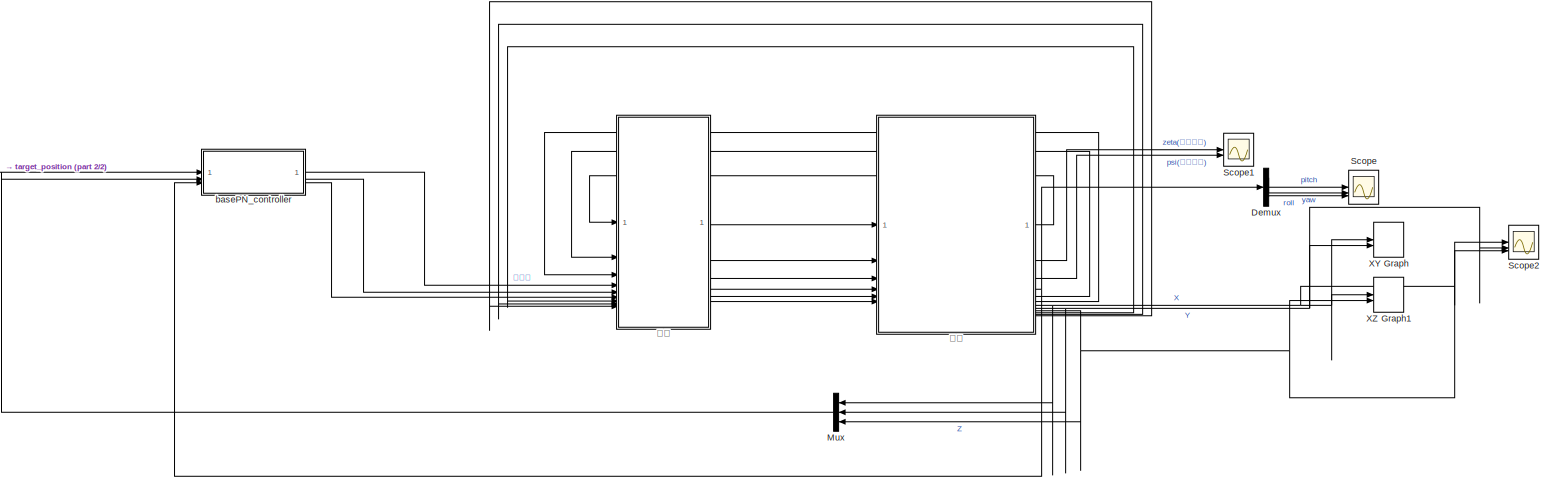
[diagram: root canvas - part 1/2, most of the canvas]
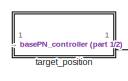
[diagram: root canvas - part 2/2, middle left region]
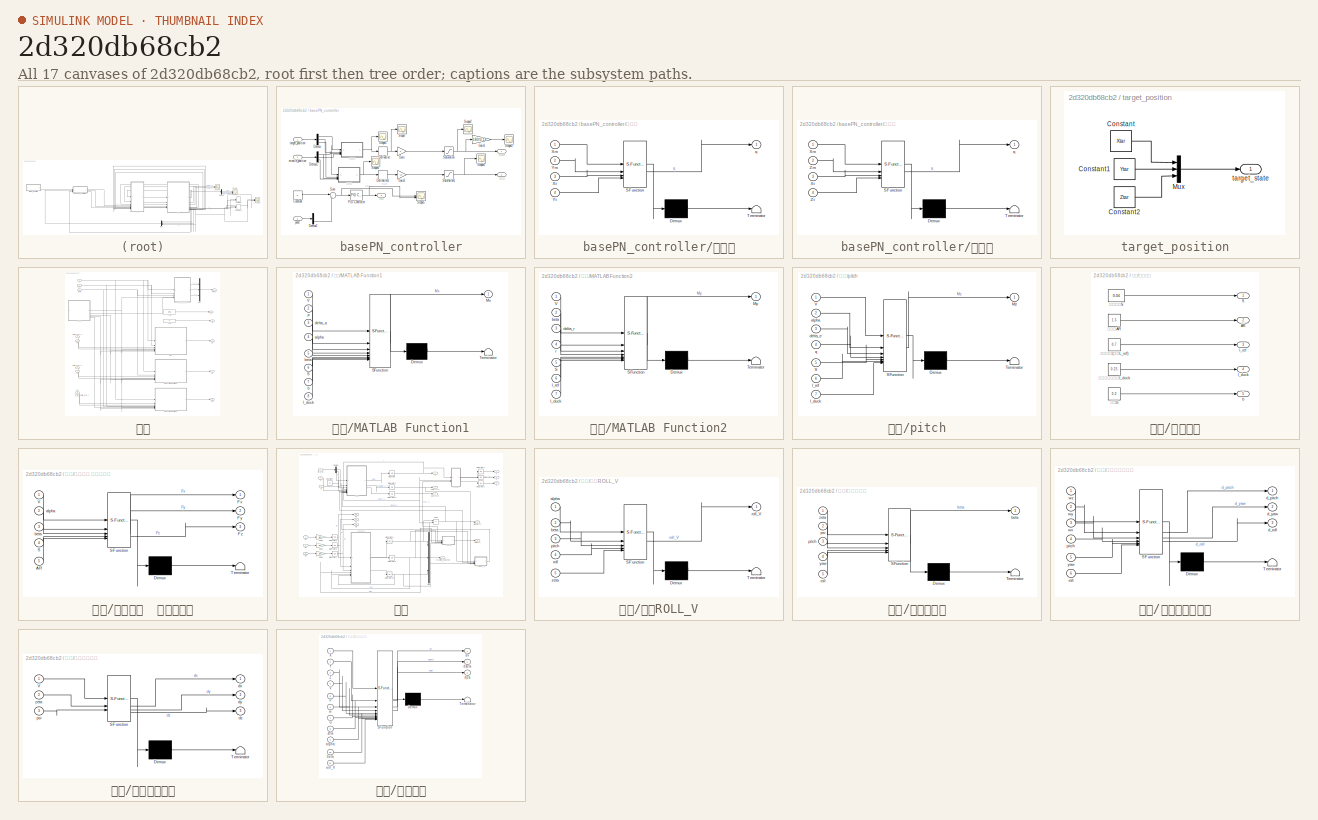
[diagram: thumbnail index - all 17 canvases of the model, root first then tree order]
MODEL slx_2d320db68cb2
KIND model
CONFIG AbsTol = auto
CONFIG EnableMultiTasking = off
CONFIG FixedStep = auto
CONFIG MaxStep = auto
CONFIG MinStep = auto
CONFIG RelTol = 1e-3
CONFIG SampleTimeConstraint = Unconstrained
CONFIG SolverName = VariableStepAuto
CONFIG StartTime = 0.0
CONFIG StopTime = 2.25
BLOCK [Demux] Demux
  Outputs = 3
BLOCK [Mux] Mux
  DisplayOption = bar
  Inputs = 3
  NameLocation = top
BLOCK [Scope] Scope
  Floating = off
  NumInputPorts = 3
  ScopeSpecificationString = Simulink.scopes.TimeScopeBlockCfg('CurrentConfiguration', extmgr.ConfigurationSet(extmgr.Configuration('Core','General UI',true),extmgr.Configuration('Core','Source UI',true),extmgr.Configuration('Sources','WiredSimulink',true,'DataLoggingVariableName','ScopeData4'),extmgr.Configuration('Visuals','Time Domain',true,'SerializedDisplays',{struct('MinYLimReal','-1.72397','MaxYLimReal','0.56017','YLab...<+2826ch>
BLOCK [Scope] Scope1
  Floating = off
  NumInputPorts = 2
  ScopeSpecificationString = Simulink.scopes.TimeScopeBlockCfg('CurrentConfiguration', extmgr.ConfigurationSet(extmgr.Configuration('Core','General UI',true),extmgr.Configuration('Core','Source UI',true),extmgr.Configuration('Sources','WiredSimulink',true,'DataLoggingVariableName','ScopeData2'),extmgr.Configuration('Visuals','Time Domain',true,'SerializedDisplays',{struct('MinYLimReal','-0.66614','MaxYLimReal','0.07402','YLab...<+2082ch>
BLOCK [Scope] Scope2
  Floating = off
  NumInputPorts = 3
  ScopeSpecificationString = Simulink.scopes.TimeScopeBlockCfg('CurrentConfiguration', extmgr.ConfigurationSet(extmgr.Configuration('Core','General UI',true),extmgr.Configuration('Core','Source UI',true),extmgr.Configuration('Sources','WiredSimulink',true,'DataLoggingVariableName','ScopeData3'),extmgr.Configuration('Visuals','Time Domain',true,'SerializedDisplays',{struct('MinYLimReal','-12.56212','MaxYLimReal','113.05906','Y...<+2692ch>
BLOCK [Record] XY Graph
  CompatibilityTag = XY
  FileSettingsInternal = {"entries":[{"content":{"excelSettings":{"content":{},"type":"Streamout.ExcelSettings"}},"type":"Streamout.FileSettingStorage","uuid":"50788435-4e7f-4ae6-926e-53e50006c5cf"}],"packageUris":["http://schema.mathworks.com/mf0/streamout_blocks/R2020a"],"version":"1.0"}
  Layout = [1 1]
  SignalsInternal = {"entries":[{"content":{"signals":[{"content":{"blockPath":["xyz_missile_model/XY Graph"],"dimensions":[1],"domain":"xyz_missile_model/XY Graph","lineColor":"#a2142f","plots":[1],"port":1,"signalID":345,"signalName":"X"},"type":"RecordBlkView.Signal","uuid":"dcb0110f-8eb4-40a9-b5a5-296dc31861ea"},{"content":{"blockPath":["xyz_missile_model/XY Graph"],"dimensions":[1],"domain":"xyz_missile_model/XY...<+337ch>
  VisualizationBindings = {"xyplotplugin":{"info":[{"series":[{"bindingParametersList":[{"parameter":"X-Axis","signalID":345,"signalName":"X"},{"parameter":"Y-Axis","signalID":348,"signalName":"Y"}],"seriesID":40790}],"subplotID":1}]}}
  st = -1
BLOCK [Record] XZ Graph1
  CompatibilityTag = XY
  FileSettingsInternal = {"entries":[{"content":{"excelSettings":{"content":{},"type":"Streamout.ExcelSettings"}},"type":"Streamout.FileSettingStorage","uuid":"9845f7a1-d993-447e-b346-9c4ab6f3d264"}],"packageUris":["http://schema.mathworks.com/mf0/streamout_blocks/R2020a"],"version":"1.0"}
  Layout = [1 1]
  SignalsInternal = {"entries":[{"content":{"signals":[{"content":{"blockPath":["xyz_missile_model/XZ Graph1"],"dimensions":[1],"domain":"xyz_missile_model/XZ Graph1","lineColor":"#a2142f","plots":[1],"port":1,"signalID":337,"signalName":"X"},"type":"RecordBlkView.Signal","uuid":"be30e74f-d4c8-4c61-9f2d-d22df2742b39"},{"content":{"blockPath":["xyz_missile_model/XZ Graph1"],"dimensions":[1],"domain":"xyz_missile_model...<+341ch>
  VisualizationBindings = {"xyplotplugin":{"info":[{"series":[{"bindingParametersList":[{"parameter":"X-Axis","signalID":337,"signalName":"X"},{"parameter":"Y-Axis","signalID":340,"signalName":"Z"}],"seriesID":33451}],"subplotID":1}]}}
  st = -1
BLOCK [SubSystem] basePN_controller
BLOCK [Constant] basePN_controller/Constant
  Value = 0
BLOCK [Demux] basePN_controller/Demux
  Outputs = 3
BLOCK [Demux] basePN_controller/Demux1
  Outputs = 3
BLOCK [Demux] basePN_controller/Demux2
  Outputs = 3
BLOCK [Derivative] basePN_controller/Derivative
BLOCK [Derivative] basePN_controller/Derivative1
BLOCK [Gain] basePN_controller/Gain
  Gain = 5
BLOCK [Gain] basePN_controller/Gain1
  Gain = 180/3.14
BLOCK [Gain] basePN_controller/Gain2
  Gain = -10
BLOCK [Reference] basePN_controller/PID Controller  REF=slpidlib/PID Controller
  LibrarySourceBlock = simulink/Continuous/PID Controller
  SourceBlock = slpidlib/PID Controller
  SourceType = PID 1dof
BLOCK [Saturate] basePN_controller/Saturation
  LowerLimit = -3.14/3
  UpperLimit = 3.14/3
BLOCK [Saturate] basePN_controller/Saturation1
  LowerLimit = -3.14/4
  UpperLimit = 3.14/4
BLOCK [Scope] basePN_controller/Scope
  Floating = off
  NumInputPorts = 1
  ScopeSpecificationString = Simulink.scopes.TimeScopeBlockCfg('CurrentConfiguration', extmgr.ConfigurationSet(extmgr.Configuration('Core','General UI',true),extmgr.Configuration('Core','Source UI',true),extmgr.Configuration('Sources','WiredSimulink',true,'DataLoggingVariableName','ScopeData1'),extmgr.Configuration('Visuals','Time Domain',true,'SerializedDisplays',{struct('MinYLimReal','-24367739610888.00781','MaxYLimReal','1...<+1513ch>
BLOCK [Scope] basePN_controller/Scope1
  Floating = off
  NumInputPorts = 1
  ScopeSpecificationString = Simulink.scopes.TimeScopeBlockCfg('CurrentConfiguration', extmgr.ConfigurationSet(extmgr.Configuration('Core','General UI',true),extmgr.Configuration('Core','Source UI',true),extmgr.Configuration('Sources','WiredSimulink',true,'DataLoggingVariableName','ScopeData2'),extmgr.Configuration('Visuals','Time Domain',true,'SerializedDisplays',{struct('MinYLimReal','-1.9635','MaxYLimReal','1.9635','YLabel...<+1423ch>
BLOCK [Scope] basePN_controller/Scope2
  Floating = off
  NumInputPorts = 1
  ScopeSpecificationString = Simulink.scopes.TimeScopeBlockCfg('CurrentConfiguration', extmgr.ConfigurationSet(extmgr.Configuration('Core','General UI',true),extmgr.Configuration('Core','Source UI',true),extmgr.Configuration('Sources','WiredSimulink',true,'DataLoggingVariableName','ScopeData3'),extmgr.Configuration('Visuals','Time Domain',true,'SerializedDisplays',{struct('MinYLimReal','-1.30833','MaxYLimReal','1.30833','YLab...<+1421ch>
BLOCK [Scope] basePN_controller/Scope3
  Floating = off
  NumInputPorts = 1
  ScopeSpecificationString = Simulink.scopes.TimeScopeBlockCfg('CurrentConfiguration', extmgr.ConfigurationSet(extmgr.Configuration('Core','General UI',true),extmgr.Configuration('Core','Source UI',true),extmgr.Configuration('Sources','WiredSimulink',true,'DataLoggingVariableName','ScopeData1'),extmgr.Configuration('Visuals','Time Domain',true,'SerializedDisplays',{struct('MinYLimReal','-75.00000','MaxYLimReal','75.00000','YL...<+1425ch>
BLOCK [Scope] basePN_controller/Scope4
  Floating = off
  NumInputPorts = 1
  ScopeSpecificationString = Simulink.scopes.TimeScopeBlockCfg('CurrentConfiguration', extmgr.ConfigurationSet(extmgr.Configuration('Core','General UI',true),extmgr.Configuration('Core','Source UI',true),extmgr.Configuration('Sources','WiredSimulink',true,'DataLoggingVariableName','ScopeData1'),extmgr.Configuration('Visuals','Time Domain',true,'SerializedDisplays',{struct('MinYLimReal','-0.98125','MaxYLimReal','0.98125','YLab...<+1425ch>
BLOCK [Scope] basePN_controller/Scope5
  Floating = off
  NumInputPorts = 2
  ScopeSpecificationString = Simulink.scopes.TimeScopeBlockCfg('CurrentConfiguration', extmgr.ConfigurationSet(extmgr.Configuration('Core','General UI',true),extmgr.Configuration('Core','Source UI',true),extmgr.Configuration('Sources','WiredSimulink',true,'DataLoggingVariableName','ScopeData6'),extmgr.Configuration('Visuals','Time Domain',true,'SerializedDisplays',{struct('MinYLimReal','-1.54538','MaxYLimReal','1.37628','YLab...<+2056ch>
BLOCK [Scope] basePN_controller/Scope6
  Floating = off
  NumInputPorts = 1
  ScopeSpecificationString = Simulink.scopes.TimeScopeBlockCfg
BLOCK [Sum] basePN_controller/Sum
  Inputs = |+-
BLOCK [Inport] basePN_controller/missile_position
  Port = 2
BLOCK [Inport] basePN_controller/pose
  Port = 3
BLOCK [Inport] basePN_controller/target_position
BLOCK [Outport] basePN_controller/副翼
  Port = 3
BLOCK [Outport] basePN_controller/升降舵
BLOCK [SubSystem] basePN_controller/垂直面
  ErrorFcn = Stateflow.Translate.translate
  LibrarySourceBlock = simulink/User-Defined\nFunctions/MATLAB Function
  PermitHierarchicalResolution = ExplicitOnly
  SFBlockType = MATLAB Function
  TreatAsAtomicUnit = on
BLOCK [Demux] basePN_controller/垂直面/ Demux 
  Outputs = 1
BLOCK [S-Function] basePN_controller/垂直面/ SFunction 
  EnableBusSupport = on
  FunctionName = sf_sfun
  PortCounts = [4 2]
  SFcnIsStateOwnerBlock = off
  SFunctionDeploymentMode = off
  Tag = Stateflow S-Function 10
BLOCK [Terminator] basePN_controller/垂直面/ Terminator 
BLOCK [Inport] basePN_controller/垂直面/Xm
BLOCK [Inport] basePN_controller/垂直面/Xt
  Port = 3
BLOCK [Inport] basePN_controller/垂直面/Ym
  Port = 2
BLOCK [Inport] basePN_controller/垂直面/Yt
  Port = 4
BLOCK [Outport] basePN_controller/垂直面/q
BLOCK [Outport] basePN_controller/方向舵
  Port = 2
BLOCK [SubSystem] basePN_controller/水平面
  ErrorFcn = Stateflow.Translate.translate
  LibrarySourceBlock = simulink/User-Defined\nFunctions/MATLAB Function
  PermitHierarchicalResolution = ExplicitOnly
  SFBlockType = MATLAB Function
  TreatAsAtomicUnit = on
BLOCK [Demux] basePN_controller/水平面/ Demux 
  Outputs = 1
BLOCK [S-Function] basePN_controller/水平面/ SFunction 
  EnableBusSupport = on
  FunctionName = sf_sfun
  PortCounts = [4 2]
  SFcnIsStateOwnerBlock = off
  SFunctionDeploymentMode = off
  Tag = Stateflow S-Function 11
BLOCK [Terminator] basePN_controller/水平面/ Terminator 
BLOCK [Inport] basePN_controller/水平面/Xm
BLOCK [Inport] basePN_controller/水平面/Xt
  Port = 3
BLOCK [Inport] basePN_controller/水平面/Zm
  Port = 2
BLOCK [Inport] basePN_controller/水平面/Zt
  Port = 4
BLOCK [Outport] basePN_controller/水平面/q
BLOCK [SubSystem] target_position
BLOCK [Constant] target_position/Constant
  Value = Xtar
BLOCK [Constant] target_position/Constant1
  Value = Ytar
BLOCK [Constant] target_position/Constant2
  Value = Ztar
BLOCK [Mux] target_position/Mux
  DisplayOption = bar
  Inputs = 3
BLOCK [Outport] target_position/target_state
BLOCK [SubSystem] 受力
BLOCK [Inport] 受力/Beta
  Port = 3
BLOCK [Outport] 受力/G
  Port = 2
BLOCK [SubSystem] 受力/MATLAB Function1
  ErrorFcn = Stateflow.Translate.translate
  LibrarySourceBlock = simulink/User-Defined\nFunctions/MATLAB Function
  PermitHierarchicalResolution = ExplicitOnly
  SFBlockType = MATLAB Function
  TreatAsAtomicUnit = on
BLOCK [Demux] 受力/MATLAB Function1/ Demux 
  Outputs = 1
BLOCK [S-Function] 受力/MATLAB Function1/ SFunction 
  EnableBusSupport = on
  FunctionName = sf_sfun
  PortCounts = [8 2]
  SFcnIsStateOwnerBlock = off
  SFunctionDeploymentMode = off
  Tag = Stateflow S-Function 3
BLOCK [Terminator] 受力/MATLAB Function1/ Terminator 
BLOCK [Outport] 受力/MATLAB Function1/Mx
BLOCK [Inport] 受力/MATLAB Function1/S
  Port = 6
BLOCK [Inport] 受力/MATLAB Function1/V
BLOCK [Inport] 受力/MATLAB Function1/alpha
  Port = 4
BLOCK [Inport] 受力/MATLAB Function1/b
  Port = 7
BLOCK [Inport] 受力/MATLAB Function1/beta
  Port = 5
BLOCK [Inport] 受力/MATLAB Function1/delta_a
  Port = 3
BLOCK [Inport] 受力/MATLAB Function1/l_duck
  Port = 8
BLOCK [Inport] 受力/MATLAB Function1/p
  Port = 2
BLOCK [SubSystem] 受力/MATLAB Function2
  ErrorFcn = Stateflow.Translate.translate
  LibrarySourceBlock = simulink/User-Defined\nFunctions/MATLAB Function
  PermitHierarchicalResolution = ExplicitOnly
  SFBlockType = MATLAB Function
  TreatAsAtomicUnit = on
BLOCK [Demux] 受力/MATLAB Function2/ Demux 
  Outputs = 1
BLOCK [S-Function] 受力/MATLAB Function2/ SFunction 
  EnableBusSupport = on
  FunctionName = sf_sfun
  PortCounts = [7 2]
  SFcnIsStateOwnerBlock = off
  SFunctionDeploymentMode = off
  Tag = Stateflow S-Function 4
BLOCK [Terminator] 受力/MATLAB Function2/ Terminator 
BLOCK [Outport] 受力/MATLAB Function2/My
BLOCK [Inport] 受力/MATLAB Function2/S
  Port = 5
BLOCK [Inport] 受力/MATLAB Function2/V
BLOCK [Inport] 受力/MATLAB Function2/beta
  Port = 2
BLOCK [Inport] 受力/MATLAB Function2/delta_r
  Port = 3
BLOCK [Inport] 受力/MATLAB Function2/l_duck
  Port = 7
BLOCK [Inport] 受力/MATLAB Function2/l_ref
  Port = 6
BLOCK [Inport] 受力/MATLAB Function2/r
  Port = 4
BLOCK [Mux] 受力/Mux
  DisplayOption = bar
  Inputs = 3
BLOCK [Outport] 受力/Mx
  Port = 6
BLOCK [Outport] 受力/My
  Port = 5
BLOCK [Outport] 受力/Mz
  Port = 4
BLOCK [Outport] 受力/P
  Port = 3
BLOCK [Outport] 受力/R(X Y Z)
BLOCK [Inport] 受力/V
BLOCK [Inport] 受力/alpha
  Port = 2
BLOCK [Inport] 受力/delta_e1(升降舵)
  Port = 4
BLOCK [Inport] 受力/delta_e2(方向舵)
  Port = 5
BLOCK [Inport] 受力/delta_e3(副翼)
  Port = 6
BLOCK [SubSystem] 受力/pitch
  ErrorFcn = Stateflow.Translate.translate
  LibrarySourceBlock = simulink/User-Defined\nFunctions/MATLAB Function
  PermitHierarchicalResolution = ExplicitOnly
  SFBlockType = MATLAB Function
  TreatAsAtomicUnit = on
BLOCK [Demux] 受力/pitch/ Demux 
  Outputs = 1
BLOCK [S-Function] 受力/pitch/ SFunction 
  EnableBusSupport = on
  FunctionName = sf_sfun
  PortCounts = [7 2]
  SFcnIsStateOwnerBlock = off
  SFunctionDeploymentMode = off
  Tag = Stateflow S-Function 1
BLOCK [Terminator] 受力/pitch/ Terminator 
BLOCK [Outport] 受力/pitch/Mz
BLOCK [Inport] 受力/pitch/S
  Port = 5
BLOCK [Inport] 受力/pitch/V
BLOCK [Inport] 受力/pitch/alpha
  Port = 2
BLOCK [Inport] 受力/pitch/delta_e
  Port = 3
BLOCK [Inport] 受力/pitch/l_duck
  Port = 7
BLOCK [Inport] 受力/pitch/l_ref
  Port = 6
BLOCK [Inport] 受力/pitch/q
  Port = 4
BLOCK [Inport] 受力/wx
  Port = 9
BLOCK [Inport] 受力/wy
  Port = 8
BLOCK [Inport] 受力/wz
  Port = 7
BLOCK [SubSystem] 受力/导弹参数
BLOCK [Outport] 受力/导弹参数/AR
  Port = 2
BLOCK [Outport] 受力/导弹参数/S
BLOCK [Outport] 受力/导弹参数/b
  Port = 5
BLOCK [Outport] 受力/导弹参数/l_duck
  Port = 4
BLOCK [Outport] 受力/导弹参数/l_ref
  Port = 3
BLOCK [Constant] 受力/导弹参数/参考长度(弹长L_ref)
  Value = 0.7
BLOCK [Constant] 受力/导弹参数/参考面积S
  Value = 0.04
BLOCK [Constant] 受力/导弹参数/展弦比AR
  Value = 1.5
BLOCK [Constant] 受力/导弹参数/机翼到中心距离l_duck
  Value = 0.25
BLOCK [Constant] 受力/导弹参数/翼长b
  Value = 0.2
BLOCK [Constant] 受力/推力P
  Value = P
BLOCK [SubSystem] 受力/空气动力  速度坐标系
  ErrorFcn = Stateflow.Translate.translate
  LibrarySourceBlock = simulink/User-Defined\nFunctions/MATLAB Function
  PermitHierarchicalResolution = ExplicitOnly
  SFBlockType = MATLAB Function
  TreatAsAtomicUnit = on
BLOCK [Demux] 受力/空气动力  速度坐标系/ Demux 
  Outputs = 1
BLOCK [S-Function] 受力/空气动力  速度坐标系/ SFunction 
  EnableBusSupport = on
  FunctionName = sf_sfun
  PortCounts = [5 4]
  SFcnIsStateOwnerBlock = off
  SFunctionDeploymentMode = off
  Tag = Stateflow S-Function 2
BLOCK [Terminator] 受力/空气动力  速度坐标系/ Terminator 
BLOCK [Inport] 受力/空气动力  速度坐标系/AR
  Port = 5
BLOCK [Outport] 受力/空气动力  速度坐标系/Fx
BLOCK [Outport] 受力/空气动力  速度坐标系/Fy
  Port = 2
BLOCK [Outport] 受力/空气动力  速度坐标系/Fz
  Port = 3
BLOCK [Inport] 受力/空气动力  速度坐标系/S
  Port = 4
BLOCK [Inport] 受力/空气动力  速度坐标系/V
BLOCK [Inport] 受力/空气动力  速度坐标系/alpha
  Port = 2
BLOCK [Inport] 受力/空气动力  速度坐标系/beta
  Port = 3
BLOCK [Constant] 受力/重力G
  Value = M*g
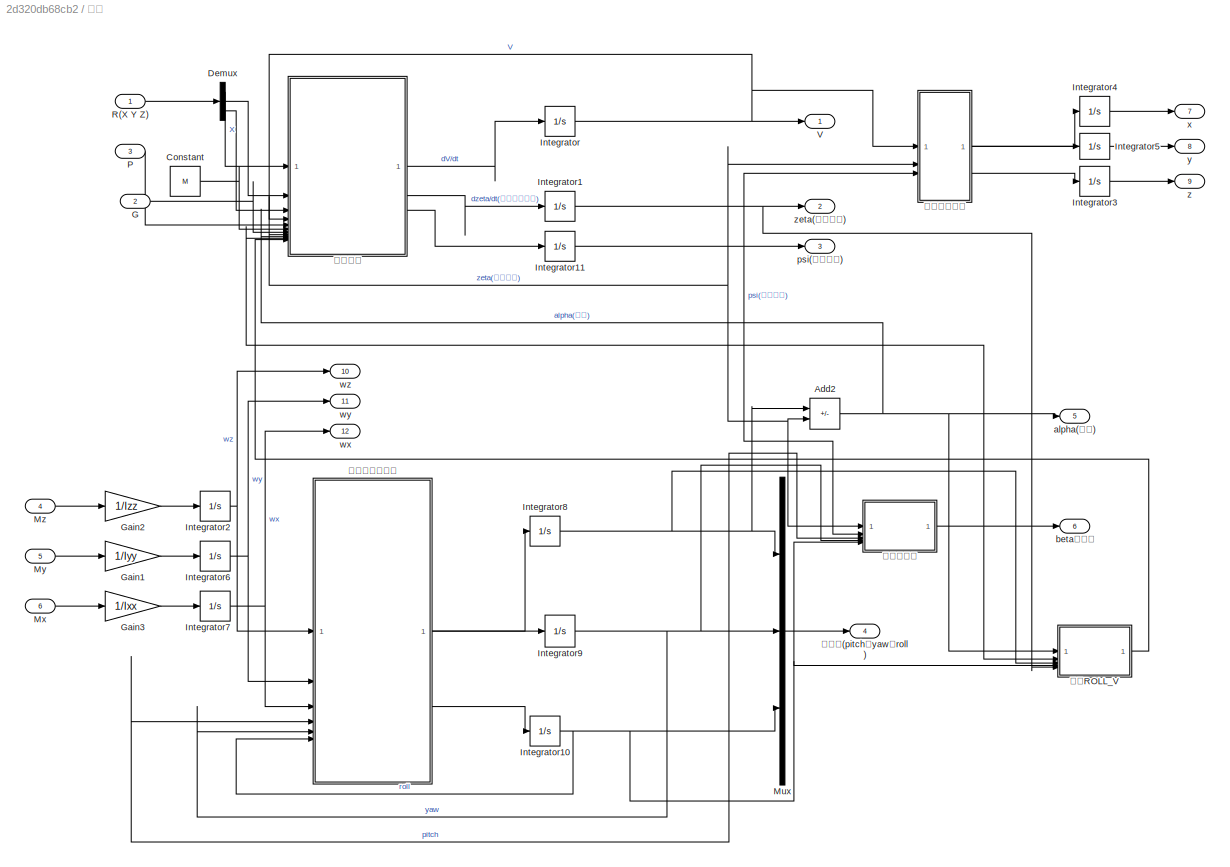
BLOCK [SubSystem] 运动
BLOCK [Sum] 运动/Add2
  IconShape = rectangular
  Inputs = +-
BLOCK [Constant] 运动/Constant
  Value = M
BLOCK [Demux] 运动/Demux
  Outputs = 3
BLOCK [Inport] 运动/G
  Port = 2
BLOCK [Gain] 运动/Gain1
  Gain = 1/Iyy
BLOCK [Gain] 运动/Gain2
  Gain = 1/Izz
BLOCK [Gain] 运动/Gain3
  Gain = 1/Ixx
BLOCK [Integrator] 运动/Integrator
  InitialCondition = V0
BLOCK [Integrator] 运动/Integrator1
  InitialCondition = zeta0
BLOCK [Integrator] 运动/Integrator10
  InitialCondition = roll0
BLOCK [Integrator] 运动/Integrator11
  InitialCondition = psi0
BLOCK [Integrator] 运动/Integrator2
  InitialCondition = wz0
BLOCK [Integrator] 运动/Integrator3
  InitialCondition = z0
BLOCK [Integrator] 运动/Integrator4
  InitialCondition = x0
BLOCK [Integrator] 运动/Integrator5
  InitialCondition = y0
BLOCK [Integrator] 运动/Integrator6
  InitialCondition = wy0
BLOCK [Integrator] 运动/Integrator7
  InitialCondition = wx0
BLOCK [Integrator] 运动/Integrator8
  InitialCondition = pitch0
BLOCK [Integrator] 运动/Integrator9
  InitialCondition = yaw0
BLOCK [Mux] 运动/Mux
  DisplayOption = bar
  Inputs = 3
BLOCK [Inport] 运动/Mx
  Port = 6
BLOCK [Inport] 运动/My
  Port = 5
BLOCK [Inport] 运动/Mz
  Port = 4
BLOCK [Inport] 运动/P
  Port = 3
BLOCK [Inport] 运动/R(X Y Z)
BLOCK [Outport] 运动/V
BLOCK [Outport] 运动/alpha(攻角)
  Port = 5
BLOCK [Outport] 运动/beta侧滑角
  Port = 6
BLOCK [Outport] 运动/psi(弹道偏角)
  Port = 3
BLOCK [Outport] 运动/wx
  Port = 12
BLOCK [Outport] 运动/wy
  Port = 11
BLOCK [Outport] 运动/wz
  Port = 10
BLOCK [Outport] 运动/x
  Port = 7
BLOCK [Outport] 运动/y
  Port = 8
BLOCK [Outport] 运动/z
  Port = 9
BLOCK [Outport] 运动/zeta(弹道倾角)
  Port = 2
BLOCK [Outport] 运动/姿态角(pitch、yaw、roll)
  Port = 4
BLOCK [SubSystem] 运动/求取ROLL_V
  ErrorFcn = Stateflow.Translate.translate
  LibrarySourceBlock = simulink/User-Defined\nFunctions/MATLAB Function
  PermitHierarchicalResolution = ExplicitOnly
  SFBlockType = MATLAB Function
  TreatAsAtomicUnit = on
BLOCK [Demux] 运动/求取ROLL_V/ Demux 
  Outputs = 1
BLOCK [S-Function] 运动/求取ROLL_V/ SFunction 
  EnableBusSupport = on
  FunctionName = sf_sfun
  PortCounts = [5 2]
  SFcnIsStateOwnerBlock = off
  SFunctionDeploymentMode = off
  Tag = Stateflow S-Function 9
BLOCK [Terminator] 运动/求取ROLL_V/ Terminator 
BLOCK [Inport] 运动/求取ROLL_V/alpha
BLOCK [Inport] 运动/求取ROLL_V/beta
  Port = 2
BLOCK [Inport] 运动/求取ROLL_V/pitch
  Port = 3
BLOCK [Inport] 运动/求取ROLL_V/roll
  Port = 4
BLOCK [Outport] 运动/求取ROLL_V/roll_V
BLOCK [Inport] 运动/求取ROLL_V/zeta
  Port = 5
BLOCK [SubSystem] 运动/求取侧滑角
  ErrorFcn = Stateflow.Translate.translate
  LibrarySourceBlock = simulink/User-Defined\nFunctions/MATLAB Function
  PermitHierarchicalResolution = ExplicitOnly
  SFBlockType = MATLAB Function
  TreatAsAtomicUnit = on
BLOCK [Demux] 运动/求取侧滑角/ Demux 
  Outputs = 1
BLOCK [S-Function] 运动/求取侧滑角/ SFunction 
  EnableBusSupport = on
  FunctionName = sf_sfun
  PortCounts = [5 2]
  SFcnIsStateOwnerBlock = off
  SFunctionDeploymentMode = off
  Tag = Stateflow S-Function 8
BLOCK [Terminator] 运动/求取侧滑角/ Terminator 
BLOCK [Outport] 运动/求取侧滑角/beta
BLOCK [Inport] 运动/求取侧滑角/pitch
  Port = 3
BLOCK [Inport] 运动/求取侧滑角/psi
  Port = 2
BLOCK [Inport] 运动/求取侧滑角/roll
  Port = 5
BLOCK [Inport] 运动/求取侧滑角/yaw
  Port = 4
BLOCK [Inport] 运动/求取侧滑角/zeta
BLOCK [SubSystem] 运动/解算姿态角速度
  ErrorFcn = Stateflow.Translate.translate
  LibrarySourceBlock = simulink/User-Defined\nFunctions/MATLAB Function
  PermitHierarchicalResolution = ExplicitOnly
  SFBlockType = MATLAB Function
  TreatAsAtomicUnit = on
BLOCK [Demux] 运动/解算姿态角速度/ Demux 
  Outputs = 1
BLOCK [S-Function] 运动/解算姿态角速度/ SFunction 
  EnableBusSupport = on
  FunctionName = sf_sfun
  PortCounts = [6 4]
  SFcnIsStateOwnerBlock = off
  SFunctionDeploymentMode = off
  Tag = Stateflow S-Function 6
BLOCK [Terminator] 运动/解算姿态角速度/ Terminator 
BLOCK [Outport] 运动/解算姿态角速度/d_pitch
BLOCK [Outport] 运动/解算姿态角速度/d_roll
  Port = 3
BLOCK [Outport] 运动/解算姿态角速度/d_yaw
  Port = 2
BLOCK [Inport] 运动/解算姿态角速度/pitch
  Port = 4
BLOCK [Inport] 运动/解算姿态角速度/roll
  Port = 6
BLOCK [Inport] 运动/解算姿态角速度/wx
  Port = 3
BLOCK [Inport] 运动/解算姿态角速度/wy
  Port = 2
BLOCK [Inport] 运动/解算姿态角速度/wz
BLOCK [Inport] 运动/解算姿态角速度/yaw
  Port = 5
BLOCK [SubSystem] 运动/解算空间速度
  ErrorFcn = Stateflow.Translate.translate
  LibrarySourceBlock = simulink/User-Defined\nFunctions/MATLAB Function
  PermitHierarchicalResolution = ExplicitOnly
  SFBlockType = MATLAB Function
  TreatAsAtomicUnit = on
BLOCK [Demux] 运动/解算空间速度/ Demux 
  Outputs = 1
BLOCK [S-Function] 运动/解算空间速度/ SFunction 
  EnableBusSupport = on
  FunctionName = sf_sfun
  PortCounts = [3 4]
  SFcnIsStateOwnerBlock = off
  SFunctionDeploymentMode = off
  Tag = Stateflow S-Function 7
BLOCK [Terminator] 运动/解算空间速度/ Terminator 
BLOCK [Inport] 运动/解算空间速度/V
BLOCK [Outport] 运动/解算空间速度/dx
BLOCK [Outport] 运动/解算空间速度/dy
  Port = 2
BLOCK [Outport] 运动/解算空间速度/dz
  Port = 3
BLOCK [Inport] 运动/解算空间速度/psi
  Port = 3
BLOCK [Inport] 运动/解算空间速度/zeta
  Port = 2
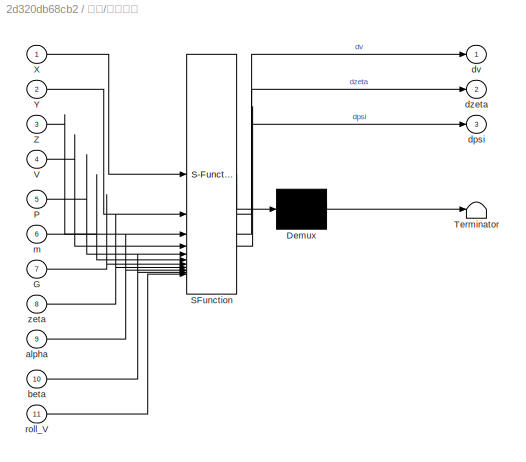
BLOCK [SubSystem] 运动/运动方程
  ErrorFcn = Stateflow.Translate.translate
  LibrarySourceBlock = simulink/User-Defined\nFunctions/MATLAB Function
  PermitHierarchicalResolution = ExplicitOnly
  SFBlockType = MATLAB Function
  TreatAsAtomicUnit = on
BLOCK [Demux] 运动/运动方程/ Demux 
  Outputs = 1
BLOCK [S-Function] 运动/运动方程/ SFunction 
  EnableBusSupport = on
  FunctionName = sf_sfun
  PortCounts = [11 4]
  SFcnIsStateOwnerBlock = off
  SFunctionDeploymentMode = off
  Tag = Stateflow S-Function 5
BLOCK [Terminator] 运动/运动方程/ Terminator 
BLOCK [Inport] 运动/运动方程/G
  Port = 7
BLOCK [Inport] 运动/运动方程/P
  Port = 5
BLOCK [Inport] 运动/运动方程/V
  Port = 4
BLOCK [Inport] 运动/运动方程/X
BLOCK [Inport] 运动/运动方程/Y
  Port = 2
BLOCK [Inport] 运动/运动方程/Z
  Port = 3
BLOCK [Inport] 运动/运动方程/alpha
  Port = 9
BLOCK [Inport] 运动/运动方程/beta
  Port = 10
BLOCK [Outport] 运动/运动方程/dpsi
  Port = 3
BLOCK [Outport] 运动/运动方程/dv
BLOCK [Outport] 运动/运动方程/dzeta
  Port = 2
BLOCK [Inport] 运动/运动方程/m
  Port = 6
BLOCK [Inport] 运动/运动方程/roll_V
  Port = 11
BLOCK [Inport] 运动/运动方程/zeta
  Port = 8
LINE Demux:1 -> Scope:1
LINE Demux:2 -> Scope:2
LINE Demux:3 -> Scope:3
LINE Mux:1 -> basePN_controller:2
LINE basePN_controller/Constant:1 -> basePN_controller/Sum:1
NET basePN_controller/Demux1:1 -> basePN_controller/垂直面:3, basePN_controller/水平面:3
LINE basePN_controller/Demux1:2 -> basePN_controller/垂直面:4
LINE basePN_controller/Demux1:3 -> basePN_controller/水平面:4
LINE basePN_controller/Demux2:3 -> basePN_controller/Sum:2
NET basePN_controller/Demux:1 -> basePN_controller/垂直面:1, basePN_controller/水平面:1
LINE basePN_controller/Demux:2 -> basePN_controller/垂直面:2
LINE basePN_controller/Demux:3 -> basePN_controller/水平面:2
LINE basePN_controller/Derivative1:1 -> basePN_controller/Gain2:1
NET basePN_controller/Derivative:1 -> basePN_controller/Gain:1, basePN_controller/Scope:1
LINE basePN_controller/Gain1:1 -> basePN_controller/Scope3:1
LINE basePN_controller/Gain2:1 -> basePN_controller/Saturation1:1
LINE basePN_controller/Gain:1 -> basePN_controller/Saturation:1
NET basePN_controller/PID Controller:1 -> basePN_controller/Scope5:2, basePN_controller/副翼:1
NET basePN_controller/Saturation1:1 -> basePN_controller/Scope4:1, basePN_controller/方向舵:1
NET basePN_controller/Saturation:1 -> basePN_controller/Gain1:1, basePN_controller/Scope2:1, basePN_controller/升降舵:1
NET basePN_controller/Sum:1 -> basePN_controller/PID Controller:1, basePN_controller/Scope5:1
LINE basePN_controller/missile_position:1 -> basePN_controller/Demux1:1
LINE basePN_controller/pose:1 -> basePN_controller/Demux2:1
LINE basePN_controller/target_position:1 -> basePN_controller/Demux:1
NET basePN_controller/垂直面:1 -> basePN_controller/Derivative:1, basePN_controller/Scope1:1
NET basePN_controller/水平面:1 -> basePN_controller/Derivative1:1, basePN_controller/Scope6:1
LINE basePN_controller:1 -> 受力:4
LINE basePN_controller:2 -> 受力:5
LINE basePN_controller:3 -> 受力:6
LINE target_position/Constant1:1 -> target_position/Mux:2
LINE target_position/Constant2:1 -> target_position/Mux:3
LINE target_position/Constant:1 -> target_position/Mux:1
LINE target_position/Mux:1 -> target_position/target_state:1
LINE target_position:1 -> basePN_controller:1
NET 受力/Beta:1 -> 受力/MATLAB Function1:5, 受力/MATLAB Function2:2, 受力/空气动力  速度坐标系:3
LINE 受力/MATLAB Function1:1 -> 受力/Mx:1
LINE 受力/MATLAB Function2:1 -> 受力/My:1
LINE 受力/Mux:1 -> 受力/R(X Y Z):1
NET 受力/V:1 -> 受力/MATLAB Function1:1, 受力/MATLAB Function2:1, 受力/pitch:1, 受力/空气动力  速度坐标系:1
NET 受力/alpha:1 -> 受力/MATLAB Function1:4, 受力/pitch:2, 受力/空气动力  速度坐标系:2
LINE 受力/delta_e1(升降舵):1 -> 受力/pitch:3
LINE 受力/delta_e2(方向舵):1 -> 受力/MATLAB Function2:3
LINE 受力/delta_e3(副翼):1 -> 受力/MATLAB Function1:3
LINE 受力/pitch:1 -> 受力/Mz:1
LINE 受力/wx:1 -> 受力/MATLAB Function1:2
LINE 受力/wy:1 -> 受力/MATLAB Function2:4
LINE 受力/wz:1 -> 受力/pitch:4
LINE 受力/导弹参数/参考长度(弹长L_ref):1 -> 受力/导弹参数/l_ref:1
LINE 受力/导弹参数/参考面积S:1 -> 受力/导弹参数/S:1
LINE 受力/导弹参数/展弦比AR:1 -> 受力/导弹参数/AR:1
LINE 受力/导弹参数/机翼到中心距离l_duck:1 -> 受力/导弹参数/l_duck:1
LINE 受力/导弹参数/翼长b:1 -> 受力/导弹参数/b:1
NET 受力/导弹参数:1 -> 受力/MATLAB Function1:6, 受力/MATLAB Function2:5, 受力/pitch:5, 受力/空气动力  速度坐标系:4
LINE 受力/导弹参数:2 -> 受力/空气动力  速度坐标系:5
NET 受力/导弹参数:3 -> 受力/MATLAB Function2:6, 受力/pitch:6
NET 受力/导弹参数:4 -> 受力/MATLAB Function1:8, 受力/MATLAB Function2:7, 受力/pitch:7
LINE 受力/导弹参数:5 -> 受力/MATLAB Function1:7
LINE 受力/推力P:1 -> 受力/P:1
LINE 受力/空气动力  速度坐标系:1 -> 受力/Mux:1
LINE 受力/空气动力  速度坐标系:2 -> 受力/Mux:2
LINE 受力/空气动力  速度坐标系:3 -> 受力/Mux:3
LINE 受力/重力G:1 -> 受力/G:1
LINE 受力:1 -> 运动:1
LINE 受力:2 -> 运动:2
LINE 受力:3 -> 运动:3
LINE 受力:4 -> 运动:4
LINE 受力:5 -> 运动:5
LINE 受力:6 -> 运动:6
NET 运动/Add2:1 -> 运动/alpha(攻角):1, 运动/求取ROLL_V:1, 运动/运动方程:9
LINE 运动/Constant:1 -> 运动/运动方程:6
LINE 运动/Demux:1 -> 运动/运动方程:1
LINE 运动/Demux:2 -> 运动/运动方程:2
LINE 运动/Demux:3 -> 运动/运动方程:3
LINE 运动/G:1 -> 运动/运动方程:7
LINE 运动/Gain1:1 -> 运动/Integrator6:1
LINE 运动/Gain2:1 -> 运动/Integrator2:1
LINE 运动/Gain3:1 -> 运动/Integrator7:1
NET 运动/Integrator10:1 -> 运动/Mux:3, 运动/求取ROLL_V:4, 运动/求取侧滑角:5, 运动/解算姿态角速度:6
NET 运动/Integrator11:1 -> 运动/psi(弹道偏角):1, 运动/求取侧滑角:2, 运动/解算空间速度:3
NET 运动/Integrator1:1 -> 运动/Add2:2, 运动/zeta(弹道倾角):1, 运动/求取ROLL_V:5, 运动/求取侧滑角:1, 运动/解算空间速度:2, 运动/运动方程:8
NET 运动/Integrator2:1 -> 运动/wz:1, 运动/解算姿态角速度:1
LINE 运动/Integrator3:1 -> 运动/z:1
LINE 运动/Integrator4:1 -> 运动/x:1
LINE 运动/Integrator5:1 -> 运动/y:1
NET 运动/Integrator6:1 -> 运动/wy:1, 运动/解算姿态角速度:2
NET 运动/Integrator7:1 -> 运动/wx:1, 运动/解算姿态角速度:3
NET 运动/Integrator8:1 -> 运动/Add2:1, 运动/Mux:1, 运动/求取ROLL_V:3, 运动/求取侧滑角:3, 运动/解算姿态角速度:4
NET 运动/Integrator9:1 -> 运动/Mux:2, 运动/求取侧滑角:4, 运动/解算姿态角速度:5
NET 运动/Integrator:1 -> 运动/V:1, 运动/解算空间速度:1, 运动/运动方程:4
LINE 运动/Mux:1 -> 运动/姿态角(pitch、yaw、roll):1
LINE 运动/Mx:1 -> 运动/Gain3:1
LINE 运动/My:1 -> 运动/Gain1:1
LINE 运动/Mz:1 -> 运动/Gain2:1
LINE 运动/P:1 -> 运动/运动方程:5
LINE 运动/R(X Y Z):1 -> 运动/Demux:1
LINE 运动/求取ROLL_V:1 -> 运动/运动方程:11
NET 运动/求取侧滑角:1 -> 运动/beta侧滑角:1, 运动/求取ROLL_V:2, 运动/运动方程:10
LINE 运动/解算姿态角速度:1 -> 运动/Integrator8:1
LINE 运动/解算姿态角速度:2 -> 运动/Integrator9:1
LINE 运动/解算姿态角速度:3 -> 运动/Integrator10:1
LINE 运动/解算空间速度:1 -> 运动/Integrator4:1
LINE 运动/解算空间速度:2 -> 运动/Integrator5:1
LINE 运动/解算空间速度:3 -> 运动/Integrator3:1
LINE 运动/运动方程:1 -> 运动/Integrator:1
LINE 运动/运动方程:2 -> 运动/Integrator1:1
LINE 运动/运动方程:3 -> 运动/Integrator11:1
LINE 运动:1 -> 受力:1
LINE 运动:10 -> 受力:7
LINE 运动:11 -> 受力:8
LINE 运动:12 -> 受力:9
LINE 运动:2 -> Scope1:1
LINE 运动:3 -> Scope1:2
NET 运动:4 -> Demux:1, basePN_controller:3
LINE 运动:5 -> 受力:2
LINE 运动:6 -> 受力:3
NET 运动:7 -> Mux:1, Scope2:1, XY Graph:1, XZ Graph1:1
NET 运动:8 -> Mux:2, Scope2:2, XY Graph:2
NET 运动:9 -> Mux:3, Scope2:3, XZ Graph1:2
note: NET lines group one-source signal fan-out (src -> all destinations, sorted); 1:1 wires keep LINE
CHART 运动/解算空间速度 states=1 transitions=1
  STATE_LABEL 'eML_blk_kernel()'
  STATE_LABEL 'SCRIPT:\nfunction [dx,dy,dz]= fcn(V,zeta,psi)\n\ndx=V*cos(zeta);\ndy=V*sin(zeta);\ndz=-V*cos(zeta)*sin(psi);\nend'
CHART 运动/求取侧滑角 states=1 transitions=1
  STATE_LABEL 'eML_blk_kernel()'
  STATE_LABEL 'SCRIPT:\nfunction beta = fcn(zeta,psi,pitch,yaw,roll)\nt=cos(zeta)*(cos(roll)*sin(yaw-psi)+sin(pitch)*sin(roll)*cos(yaw-psi)-sin(zeta)*cos(pitch)*sin(roll));\nbeta=asin(t);\nend\n'
CHART 运动/求取ROLL_V states=1 transitions=1
  STATE_LABEL 'eML_blk_kernel()'
  STATE_LABEL 'SCRIPT:\nfunction roll_V = fcn(alpha,beta,pitch,roll,zeta)\nt=( ...\n    cos(alpha)*sin(beta)*sin(pitch) ...\n    -sin(alpha)*sin(beta)*cos(roll)*cos(pitch) ...\n    +cos(beta)*sin(roll)*cos(pitch) ...\n    )/cos(zeta);\nroll_V=asin(t);\nend'
CHART basePN_controller/垂直面 states=1 transitions=1
  STATE_LABEL 'eML_blk_kernel()'
  STATE_LABEL 'SCRIPT:\nfunction q = fcn(Xm,Ym,Xt,Yt)\nq=atan((Yt-Ym)/(Xt-Xm));\nend\n'
CHART basePN_controller/水平面 states=1 transitions=1
  STATE_LABEL 'eML_blk_kernel()'
  STATE_LABEL 'SCRIPT:\nfunction q = fcn(Xm,Zm,Xt,Zt)\nq=atan((Zt-Zm)/(Xt-Xm));\nend\n'
CHART 受力/pitch states=1 transitions=1
  STATE_LABEL 'eML_blk_kernel()'
  STATE_LABEL 'SCRIPT:\nfunction Mz = calc_pitch_moment_duck(V, alpha, delta_e, q, S, l_ref, l_duck)\n    % 鸭式布局导弹俯仰力矩计算（绕Y轴）\n    % 输入参数：\n    %   状态参数：\n    %   V       - 导弹飞行速度 (m/s)\n    %   alpha   - 攻角 (rad)\n    %   delta_e - 鸭式升降舵偏角 (rad，正为上偏)\n    %   q       - 俯仰角速度 (rad/s)\n    %   几何参数（可调整）：\n    %   S       - 参考面积 (m²)\n    %   l_ref   - 弹体参考长度（弹长）(m)\n    %   l_duck  - 鸭翼到重心距离 (m)\n    % 输出参数：\n    %   Mz      -...<+918ch>'
CHART 受力/空气动力  速度坐标系 states=1 transitions=1
  STATE_LABEL 'eML_blk_kernel()'
  STATE_LABEL 'SCRIPT:\nfunction [Fx, Fy, Fz] = missile_forces(V, alpha, beta, S, AR)\n    % 计算速度坐标系下的导弹空气动力\n    % 输入参数：\n    %   V - 导弹速度大小 (m/s)\n    %   alpha - 攻角 (rad)\n    %   beta - 侧滑角 (rad)\n    %   S - 参考面积 (m²)\n    %   AR - 展弦比\n    % 输出参数：\n    %   Fx - 阻力 (-X方向，与速度方向相反)\n    %   Fy - 升力 (Y方向，垂直速度向上)\n    %   Fz - 侧向力 (Z方向，垂直速度侧向)\n    \n    % 1. 空气密度（50m高度近似为海平面值）\n    rho = 1.225;  % kg/m³\n    \n    % 2. 升力计算\n  ...<+574ch>'
CHART 受力/MATLAB Function1 states=1 transitions=1
  STATE_LABEL 'eML_blk_kernel()'
  STATE_LABEL 'SCRIPT:\nfunction Mx = calc_roll_moment_duck(V, p, delta_a, alpha, beta, S, b, l_duck)\n    % 鸭式布局导弹滚动力矩计算（绕X轴）\n    % 输入参数：\n    %   状态参数：\n    %   V       - 导弹飞行速度 (m/s)\n    %   p       - 滚转角速度 (rad/s)\n    %   delta_a - 鸭式副翼偏角 (rad，正为右鸭翼上偏)\n    %   alpha   - 攻角 (rad)\n    %   beta    - 侧滑角 (rad)\n    %   几何参数（可调整）：\n    %   S       - 参考面积 (m²)\n    %   b       - 翼展 (m)\n    %   l_duck  - 鸭翼到重心距离 (m)\n    %...<+922ch>'
CHART 受力/MATLAB Function2 states=1 transitions=1
  STATE_LABEL 'eML_blk_kernel()'
  STATE_LABEL 'SCRIPT:\nfunction My = calc_yaw_moment_duck(V, beta, delta_r, r, S, l_ref, l_duck)\n    % 鸭式布局导弹偏航力矩计算（绕Z轴）\n    % 输入参数：\n    %   状态参数：\n    %   V       - 导弹飞行速度 (m/s)\n    %   beta    - 侧滑角 (rad)\n    %   delta_r - 鸭式方向舵偏角 (rad，正为右偏)\n    %   r       - 偏航角速度 (rad/s)\n    %   几何参数（可调整）：\n    %   S       - 参考面积 (m²)\n    %   l_ref   - 弹体参考长度（弹长）(m)\n    %   l_duck  - 鸭翼到重心距离 (m)\n    % 输出参数：\n    %   My      - 偏...<+945ch>'
CHART 运动/运动方程 states=1 transitions=1
  STATE_LABEL 'eML_blk_kernel()'
  STATE_LABEL 'SCRIPT:\nfunction [dv, dzeta,dpsi] = missile_act(X,Y,Z,V,P,m,G,zeta,alpha,beta,roll_V)\n\n    dv=(P*cos(alpha)-X-G*sin(zeta))/m;\n    dzeta=(P*sin(alpha)+Y-G*cos(zeta))/(m*V);\n    t=(P*sin(alpha)+Y)*sin(roll_V)-(P*cos(alpha)*sin(beta)-Z)*cos(roll_V);\n    dpsi=-t/(m*V*cos(zeta));\n        \nend\n\n'
CHART 运动/解算姿态角速度 states=1 transitions=1
  STATE_LABEL 'eML_blk_kernel()'
  STATE_LABEL 'SCRIPT:\nfunction [d_pitch,d_yaw,d_roll]= fcn(wz,wy,wx,pitch,yaw,roll)\n\nd_pitch=wy*sin(roll)+wz*cos(roll);\nd_yaw=(wy*cos(roll)-wz*sin(roll))/cos(pitch);\nd_roll=wx-tan(pitch)*(wy*cos(roll)-wz*sin(roll));\nend'
CHART  states=0 transitions=0
CHART  states=0 transitions=0
CHART  states=0 transitions=0
CHART  states=0 transitions=0
CHART  states=0 transitions=0
CHART  states=0 transitions=0
CHART  states=0 transitions=0
CHART  states=0 transitions=0
CHART  states=0 transitions=0
CHART  states=0 transitions=0
CHART  states=0 transitions=0
